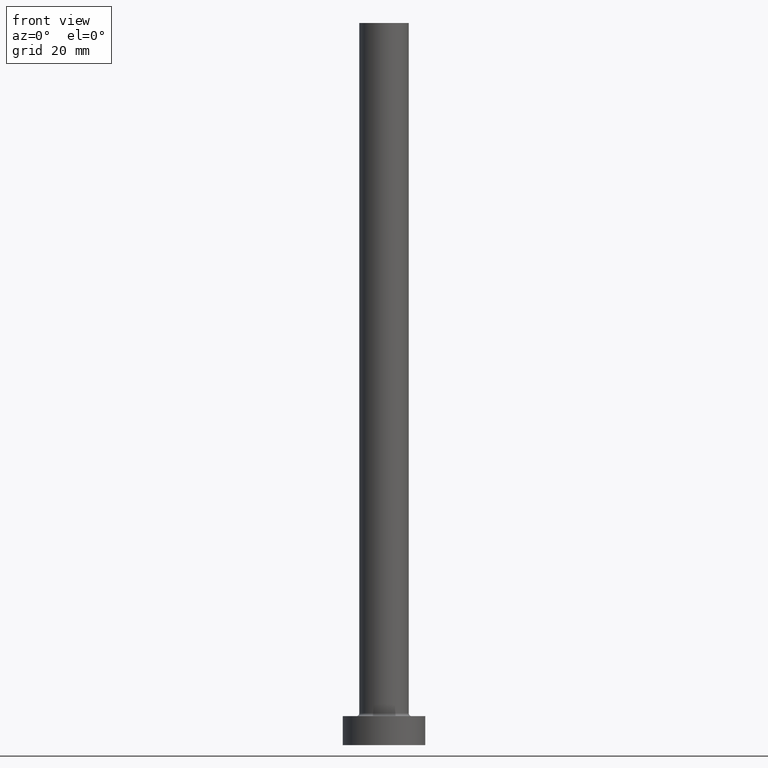
[diagram: clean part render]
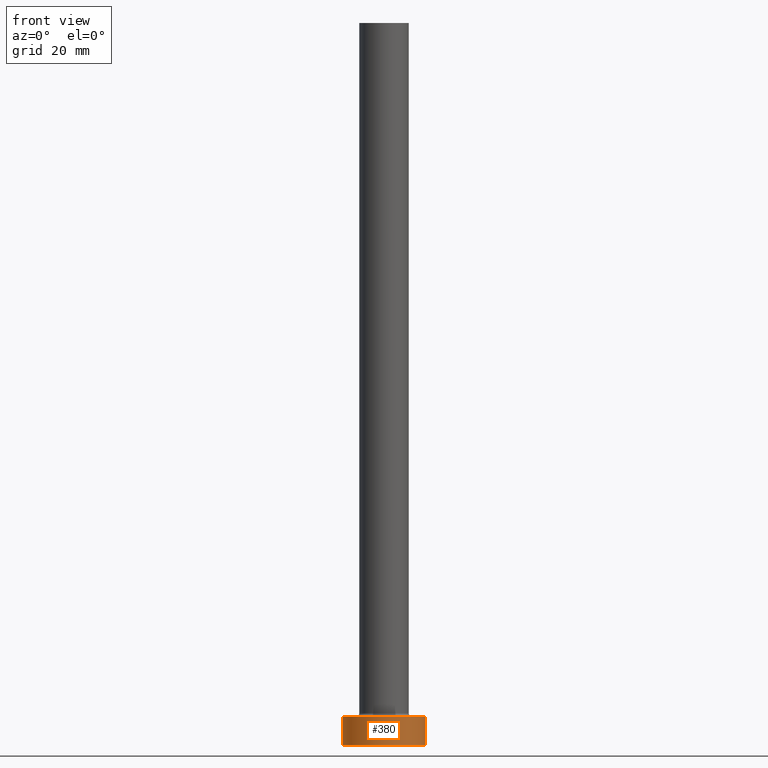
[diagram: same view with one face highlighted and labeled with its STEP entity id]
A machine part, front view. The second image highlights one B-rep face of the part: STEP entity #380.
In plain terms, the highlighted cylindrical surface (partial cylindrical patch) has radius 10 mm, axis along (-0, -0, -1).
Its self-contained STEP definition (entity closure, byte-faithful):
#17 = ORIENTED_EDGE ( 'NONE', *, *, #318, .T. ) ;
#28 = EDGE_CURVE ( 'NONE', #365, #199, #169, .T. ) ;
#39 = EDGE_CURVE ( 'NONE', #91, #362, #405, .T. ) ;
#45 = DIRECTION ( 'NONE',  ( 1.000000000000000000, 0.000000000000000000, 0.000000000000000000 ) ) ;
#46 = ORIENTED_EDGE ( 'NONE', *, *, #28, .F. ) ;
#48 = DIRECTION ( 'NONE',  ( 1.000000000000000000, 0.000000000000000000, 0.000000000000000000 ) ) ;
#52 = CARTESIAN_POINT ( 'NONE',  ( 10.00000000000000000, 1.224646799147353256E-15, 7.000000000000000000 ) ) ;
#75 = VECTOR ( 'NONE', #94, 1000.000000000000000 ) ;
#84 = CARTESIAN_POINT ( 'NONE',  ( -10.00000000000000000, 0.000000000000000000, 7.000000000000000000 ) ) ;
#91 = VERTEX_POINT ( 'NONE', #139 ) ;
#94 = DIRECTION ( 'NONE',  ( -0.000000000000000000, -0.000000000000000000, -1.000000000000000000 ) ) ;
#110 = AXIS2_PLACEMENT_3D ( 'NONE', #371, #401, #45 ) ;
#111 = AXIS2_PLACEMENT_3D ( 'NONE', #151, #288, #434 ) ;
#126 = CARTESIAN_POINT ( 'NONE',  ( -10.00000000000000000, 0.000000000000000000, 0.000000000000000000 ) ) ;
#139 = CARTESIAN_POINT ( 'NONE',  ( -10.00000000000000000, 0.000000000000000000, 7.000000000000000000 ) ) ;
#151 = CARTESIAN_POINT ( 'NONE',  ( 0.000000000000000000, 0.000000000000000000, 7.000000000000000000 ) ) ;
#158 = CIRCLE ( 'NONE', #418, 10.00000000000000000 ) ;
#162 = CYLINDRICAL_SURFACE ( 'NONE', #111, 10.00000000000000000 ) ;
#169 = LINE ( 'NONE', #340, #201 ) ;
#199 = VERTEX_POINT ( 'NONE', #420 ) ;
#201 = VECTOR ( 'NONE', #270, 1000.000000000000000 ) ;
#218 = EDGE_CURVE ( 'NONE', #91, #365, #311, .T. ) ;
#230 = ORIENTED_EDGE ( 'NONE', *, *, #39, .T. ) ;
#261 = DIRECTION ( 'NONE',  ( 0.000000000000000000, 0.000000000000000000, 1.000000000000000000 ) ) ;
#270 = DIRECTION ( 'NONE',  ( -0.000000000000000000, -0.000000000000000000, -1.000000000000000000 ) ) ;
#288 = DIRECTION ( 'NONE',  ( -0.000000000000000000, -0.000000000000000000, -1.000000000000000000 ) ) ;
#311 = CIRCLE ( 'NONE', #110, 10.00000000000000000 ) ;
#318 = EDGE_CURVE ( 'NONE', #362, #199, #158, .T. ) ;
#322 = ORIENTED_EDGE ( 'NONE', *, *, #218, .F. ) ;
#324 = CARTESIAN_POINT ( 'NONE',  ( 0.000000000000000000, 0.000000000000000000, 0.000000000000000000 ) ) ;
#334 = FACE_OUTER_BOUND ( 'NONE', #373, .T. ) ;
#340 = CARTESIAN_POINT ( 'NONE',  ( 10.00000000000000000, 1.224646799147353256E-15, 7.000000000000000000 ) ) ;
#362 = VERTEX_POINT ( 'NONE', #126 ) ;
#365 = VERTEX_POINT ( 'NONE', #52 ) ;
#371 = CARTESIAN_POINT ( 'NONE',  ( 0.000000000000000000, 0.000000000000000000, 7.000000000000000000 ) ) ;
#373 = EDGE_LOOP ( 'NONE', ( #46, #322, #230, #17 ) ) ;
#380 = ADVANCED_FACE ( 'NONE', ( #334 ), #162, .T. ) ;
#401 = DIRECTION ( 'NONE',  ( 0.000000000000000000, 0.000000000000000000, 1.000000000000000000 ) ) ;
#405 = LINE ( 'NONE', #84, #75 ) ;
#418 = AXIS2_PLACEMENT_3D ( 'NONE', #324, #261, #48 ) ;
#420 = CARTESIAN_POINT ( 'NONE',  ( 10.00000000000000000, 1.224646799147353256E-15, 0.000000000000000000 ) ) ;
#434 = DIRECTION ( 'NONE',  ( -1.000000000000000000, 0.000000000000000000, 0.000000000000000000 ) ) ;